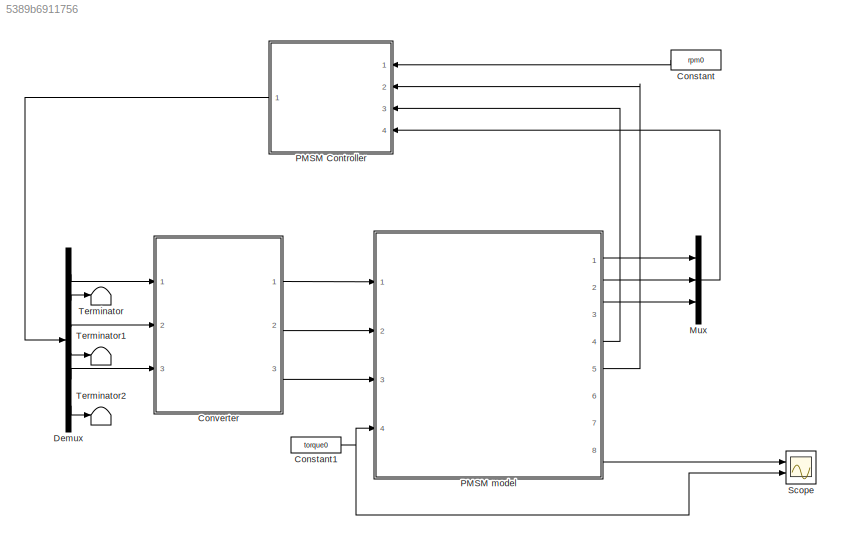
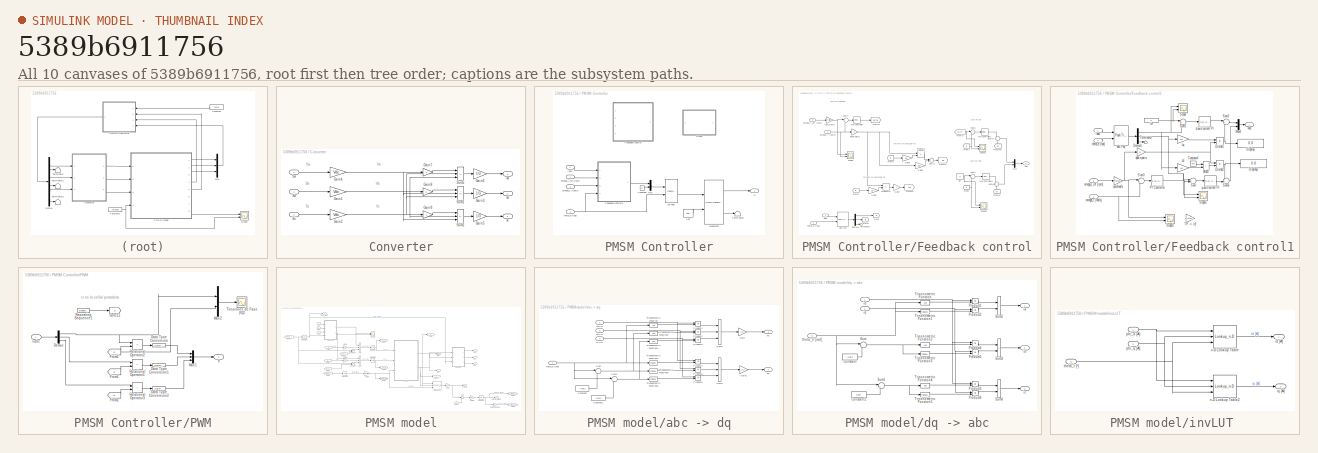
[diagram: thumbnail index - all 10 canvases of the model, root first then tree order]
MODEL slx_5389b6911756
KIND model
CONFIG AbsTol = 1e-3
CONFIG EnableMultiTasking = on
CONFIG FixedStep = Ts
CONFIG MaxStep = 1e-6
CONFIG MinStep = auto
CONFIG RelTol = 1e-4
CONFIG SampleTimeConstraint = Unconstrained
CONFIG SolverName = ode23t
CONFIG StartTime = 0.0
CONFIG StopTime = tsim
BLOCK [Constant] Constant
  Value = rpm0
BLOCK [Constant] Constant1
  Value = torque0
BLOCK [SubSystem] Converter
  Ports = [3, 3]
  RequestExecContextInheritance = off
BLOCK [Gain] Converter/Gain1
  Gain = Vdc
BLOCK [Gain] Converter/Gain2
  Gain = Vdc
BLOCK [Gain] Converter/Gain3
  Gain = 1/3
BLOCK [Gain] Converter/Gain4
  Gain = Vdc
BLOCK [Gain] Converter/Gain5
  Gain = 1/3
BLOCK [Gain] Converter/Gain6
  Gain = 1/3
BLOCK [Gain] Converter/Gain7
  Gain = 2
BLOCK [Gain] Converter/Gain8
  Gain = 2
BLOCK [Gain] Converter/Gain9
  Gain = 2
BLOCK [Inport] Converter/Sa
BLOCK [Inport] Converter/Sb
  Port = 2
BLOCK [Inport] Converter/Sc
  Port = 3
BLOCK [Sum] Converter/Sum1
  IconShape = rectangular
  Inputs = |+--
  Ports = [3, 1]
BLOCK [Sum] Converter/Sum2
  IconShape = rectangular
  Inputs = |+--
  Ports = [3, 1]
BLOCK [Sum] Converter/Sum5
  IconShape = rectangular
  Inputs = |+--
  Ports = [3, 1]
BLOCK [Outport] Converter/va
BLOCK [Outport] Converter/vb
  Port = 2
BLOCK [Outport] Converter/vc
  Port = 3
BLOCK [Demux] Demux
  Outputs = 6
  Ports = [1, 6]
BLOCK [Mux] Mux
  DisplayOption = bar
  Inputs = 3
  Ports = [3, 1]
BLOCK [SubSystem] PMSM Controller
  NameLocation = top
  Ports = [4, 1]
  RequestExecContextInheritance = off
BLOCK [Constant] PMSM Controller/Constant
  SampleTime = -1
  Value = 0
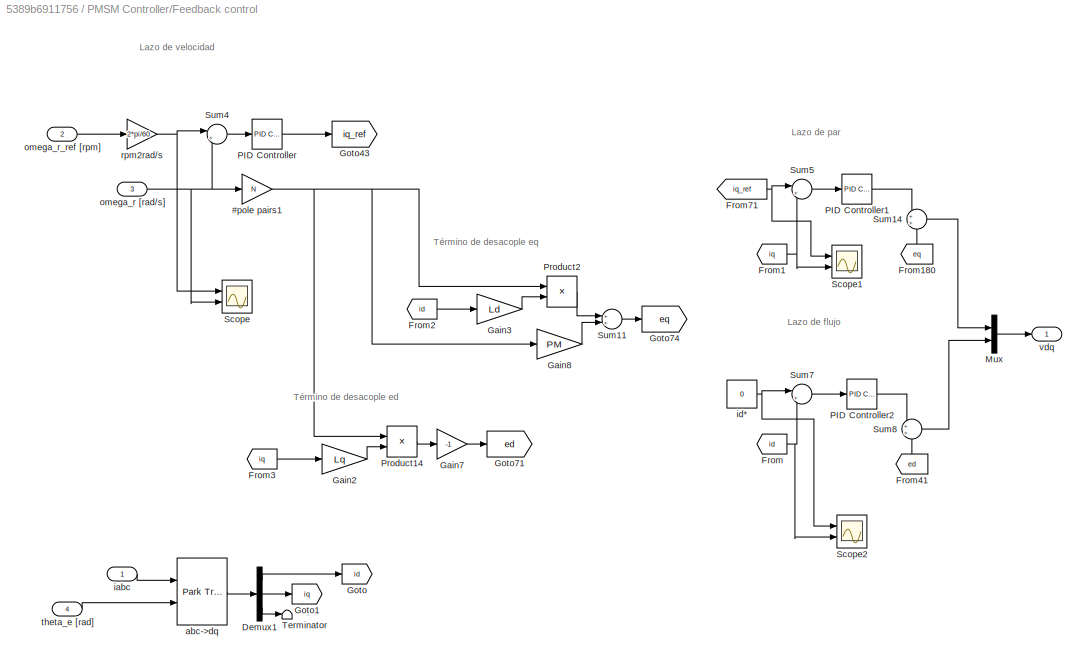
BLOCK [SubSystem] PMSM Controller/Feedback control
  Commented = on
  Ports = [4, 1]
  RequestExecContextInheritance = off
BLOCK [Gain] PMSM Controller/Feedback control/#pole pairs1
  Gain = N
BLOCK [Demux] PMSM Controller/Feedback control/Demux1
  Outputs = 3
  Ports = [1, 3]
BLOCK [From] PMSM Controller/Feedback control/From
  GotoTag = id
BLOCK [From] PMSM Controller/Feedback control/From1
  GotoTag = iq
BLOCK [From] PMSM Controller/Feedback control/From180
  CloseFcn = tagdialog Close
  GotoTag = eq
  NameLocation = left
BLOCK [From] PMSM Controller/Feedback control/From2
  GotoTag = id
BLOCK [From] PMSM Controller/Feedback control/From3
  GotoTag = iq
BLOCK [From] PMSM Controller/Feedback control/From41
  CloseFcn = tagdialog Close
  GotoTag = ed
  NameLocation = left
BLOCK [From] PMSM Controller/Feedback control/From71
  CloseFcn = tagdialog Close
  GotoTag = iq_ref
BLOCK [Gain] PMSM Controller/Feedback control/Gain2
  Gain = Lq
  NameLocation = top
BLOCK [Gain] PMSM Controller/Feedback control/Gain3
  Gain = Ld
  NameLocation = top
BLOCK [Gain] PMSM Controller/Feedback control/Gain7
  Gain = -1
  NameLocation = top
BLOCK [Gain] PMSM Controller/Feedback control/Gain8
  Gain = PM
  NameLocation = top
BLOCK [Goto] PMSM Controller/Feedback control/Goto
  GotoTag = id
BLOCK [Goto] PMSM Controller/Feedback control/Goto1
  GotoTag = iq
BLOCK [Goto] PMSM Controller/Feedback control/Goto43
  GotoTag = iq_ref
BLOCK [Goto] PMSM Controller/Feedback control/Goto71
  GotoTag = ed
BLOCK [Goto] PMSM Controller/Feedback control/Goto74
  GotoTag = eq
BLOCK [Mux] PMSM Controller/Feedback control/Mux
  DisplayOption = bar
  Inputs = 2
  Ports = [2, 1]
BLOCK [Reference] PMSM Controller/Feedback control/PID Controller  REF=simulink_need_slupdate/PID Controller
  Ports = [1, 1]
  SourceBlock = simulink_need_slupdate/PID Controller
  SourceProductBaseCode = SL
  SourceType = PID Controller
BLOCK [Reference] PMSM Controller/Feedback control/PID Controller1  REF=simulink_need_slupdate/PID Controller
  Ports = [1, 1]
  SourceBlock = simulink_need_slupdate/PID Controller
  SourceProductBaseCode = SL
  SourceType = PID Controller
BLOCK [Reference] PMSM Controller/Feedback control/PID Controller2  REF=simulink_need_slupdate/PID Controller
  Ports = [1, 1]
  SourceBlock = simulink_need_slupdate/PID Controller
  SourceProductBaseCode = SL
  SourceType = PID Controller
BLOCK [Product] PMSM Controller/Feedback control/Product14
  Ports = [2, 1]
  RndMeth = Zero
BLOCK [Product] PMSM Controller/Feedback control/Product2
  Ports = [2, 1]
  RndMeth = Zero
BLOCK [Scope] PMSM Controller/Feedback control/Scope
  Floating = off
  NumInputPorts = 2
  Ports = [2]
  ScopeSpecificationString = Simulink.scopes.TimeScopeBlockCfg('CurrentConfiguration', extmgr.ConfigurationSet(extmgr.Configuration('Core','General UI',true),extmgr.Configuration('Core','Source UI',true),extmgr.Configuration('Sources','WiredSimulink',true,'DataLoggingVariableName','ScopeData1'),extmgr.Configuration('Visuals','Time Domain',true,'SerializedDisplays',{struct('MinYLimReal','-38373.40397','MaxYLimReal','5101.46959...<+1500ch>
BLOCK [Scope] PMSM Controller/Feedback control/Scope1
  Floating = off
  NumInputPorts = 2
  Ports = [2]
  ScopeSpecificationString = Simulink.scopes.TimeScopeBlockCfg('CurrentConfiguration', extmgr.ConfigurationSet(extmgr.Configuration('Core','General UI',true),extmgr.Configuration('Core','Source UI',true),extmgr.Configuration('Sources','WiredSimulink',true,'DataLoggingVariableName','ScopeData2'),extmgr.Configuration('Visuals','Time Domain',true,'SerializedDisplays',{struct('MinYLimReal','-29332264.26569','MaxYLimReal','2639873...<+1529ch>
BLOCK [Scope] PMSM Controller/Feedback control/Scope2
  Floating = off
  NumInputPorts = 2
  Ports = [2]
  ScopeSpecificationString = Simulink.scopes.TimeScopeBlockCfg('CurrentConfiguration', extmgr.ConfigurationSet(extmgr.Configuration('Core','General UI',true),extmgr.Configuration('Core','Source UI',true),extmgr.Configuration('Sources','WiredSimulink',true,'DataLoggingVariableName','ScopeData1'),extmgr.Configuration('Visuals','Time Domain',true,'SerializedDisplays',{struct('MinYLimReal','-275.92352','MaxYLimReal','868.41621','...<+1486ch>
BLOCK [Sum] PMSM Controller/Feedback control/Sum11
  Ports = [2, 1]
BLOCK [Sum] PMSM Controller/Feedback control/Sum14
  Ports = [2, 1]
BLOCK [Sum] PMSM Controller/Feedback control/Sum4
  Inputs = |+-
  Ports = [2, 1]
BLOCK [Sum] PMSM Controller/Feedback control/Sum5
  Inputs = |+-
  Ports = [2, 1]
BLOCK [Sum] PMSM Controller/Feedback control/Sum7
  Inputs = |+-
  Ports = [2, 1]
BLOCK [Sum] PMSM Controller/Feedback control/Sum8
  Ports = [2, 1]
BLOCK [Terminator] PMSM Controller/Feedback control/Terminator
BLOCK [Reference] PMSM Controller/Feedback control/abc->dq  REF=eeTransforms/Park Transform
  Ports = [2, 1]
  SourceBlock = eeTransforms/Park Transform
  SourceProductBaseCode = PS
  SourceType = Park Transform
BLOCK [Inport] PMSM Controller/Feedback control/iabc
BLOCK [Constant] PMSM Controller/Feedback control/id*
  SampleTime = Tsc
  Value = 0
BLOCK [Inport] PMSM Controller/Feedback control/omega_r [rad//s]
  Port = 3
BLOCK [Inport] PMSM Controller/Feedback control/omega_r_ref [rpm]
  Port = 2
BLOCK [Gain] PMSM Controller/Feedback control/rpm2rad//s
  Gain = 2*pi/60
BLOCK [Inport] PMSM Controller/Feedback control/theta_e [rad]
  Port = 4
BLOCK [Outport] PMSM Controller/Feedback control/vdq
BLOCK [SubSystem] PMSM Controller/Feedback control1
  Ports = [4, 1]
  RequestExecContextInheritance = off
BLOCK [Gain] PMSM Controller/Feedback control1/#pole pairs
  Gain = N
BLOCK [Sum] PMSM Controller/Feedback control1/Add1
  IconShape = rectangular
  Ports = [2, 1]
BLOCK [Constant] PMSM Controller/Feedback control1/Constant4
  SampleTime = -1
  Value = PM
BLOCK [Demux] PMSM Controller/Feedback control1/Demux1
  Outputs = 3
  Ports = [1, 3]
BLOCK [Display] PMSM Controller/Feedback control1/Display
  Decimation = 1
  Ports = [1]
BLOCK [Display] PMSM Controller/Feedback control1/Display1
  Decimation = 1
  Ports = [1]
BLOCK [Product] PMSM Controller/Feedback control1/Divide1
  Inputs = **
  Ports = [2, 1]
BLOCK [Product] PMSM Controller/Feedback control1/Divide2
  Inputs = **
  Ports = [2, 1]
BLOCK [Gain] PMSM Controller/Feedback control1/Ld
  Gain = Ld
BLOCK [Gain] PMSM Controller/Feedback control1/Lq
  Gain = Lq
BLOCK [Mux] PMSM Controller/Feedback control1/Mux4
  DisplayOption = bar
  Inputs = 2
  Ports = [2, 1]
BLOCK [Reference] PMSM Controller/Feedback control1/PI Controller  REF=slpidlib/PID Controller
  Ports = [1, 1]
  SourceBlock = slpidlib/PID Controller
  SourceProductBaseCode = SL
  SourceType = PID 1dof
BLOCK [Scope] PMSM Controller/Feedback control1/Scope
  Floating = off
  NumInputPorts = 2
  Ports = [2]
  ScopeSpecificationString = Simulink.scopes.TimeScopeBlockCfg('CurrentConfiguration', extmgr.ConfigurationSet(extmgr.Configuration('Core','General UI',true),extmgr.Configuration('Core','Source UI',true),extmgr.Configuration('Sources','WiredSimulink',true,'DataLoggingVariableName','ScopeData1'),extmgr.Configuration('Visuals','Time Domain',true,'SerializedDisplays',{struct('MinYLimReal','-95.66539','MaxYLimReal','80.69376','YL...<+1480ch>
BLOCK [Scope] PMSM Controller/Feedback control1/Scope1
  Floating = off
  NumInputPorts = 2
  Ports = [2]
  ScopeSpecificationString = Simulink.scopes.TimeScopeBlockCfg('CurrentConfiguration', extmgr.ConfigurationSet(extmgr.Configuration('Core','General UI',true),extmgr.Configuration('Core','Source UI',true),extmgr.Configuration('Sources','WiredSimulink',true,'DataLoggingVariableName','ScopeData2'),extmgr.Configuration('Visuals','Time Domain',true,'SerializedDisplays',{struct('MinYLimReal','-1107.37328','MaxYLimReal','143.15809',...<+1504ch>
BLOCK [Scope] PMSM Controller/Feedback control1/Scope2
  Floating = off
  NumInputPorts = 2
  Ports = [2]
  ScopeSpecificationString = Simulink.scopes.TimeScopeBlockCfg('CurrentConfiguration', extmgr.ConfigurationSet(extmgr.Configuration('Core','General UI',true),extmgr.Configuration('Core','Source UI',true),extmgr.Configuration('Sources','WiredSimulink',true,'DataLoggingVariableName','ScopeData1'),extmgr.Configuration('Visuals','Time Domain',true,'SerializedDisplays',{struct('MinYLimReal','-65.89867','MaxYLimReal','1116.68684','...<+1540ch>
BLOCK [Sum] PMSM Controller/Feedback control1/Sum
  Inputs = -+|
  Ports = [2, 1]
BLOCK [Sum] PMSM Controller/Feedback control1/Sum1
  Inputs = |+-
  Ports = [2, 1]
BLOCK [Sum] PMSM Controller/Feedback control1/Sum2
  Inputs = |+-
  Ports = [2, 1]
BLOCK [Sum] PMSM Controller/Feedback control1/Sum3
  Inputs = |+-
  Ports = [2, 1]
BLOCK [Sum] PMSM Controller/Feedback control1/Sum6
  Inputs = ++|
  Ports = [2, 1]
BLOCK [Gain] PMSM Controller/Feedback control1/Te* -> iq*
  Commented = on
  Gain = 2/(3*N*PM)
BLOCK [Terminator] PMSM Controller/Feedback control1/Terminator
BLOCK [Reference] PMSM Controller/Feedback control1/abc->dq  REF=eeTransforms/Park Transform
  Ports = [2, 1]
  SourceBlock = eeTransforms/Park Transform
  SourceProductBaseCode = PS
  SourceType = Park Transform
BLOCK [Reference] PMSM Controller/Feedback control1/d-axis current PI  REF=slpidlib/PID Controller
  Ports = [1, 1]
  SourceBlock = slpidlib/PID Controller
  SourceProductBaseCode = SL
  SourceType = PID 1dof
BLOCK [Inport] PMSM Controller/Feedback control1/iabc
BLOCK [Constant] PMSM Controller/Feedback control1/id*
  SampleTime = Tsc
  Value = 0
BLOCK [Inport] PMSM Controller/Feedback control1/omega_r [rad//s]
  Port = 3
BLOCK [Inport] PMSM Controller/Feedback control1/omega_r_ref [rpm]
  Port = 2
BLOCK [Reference] PMSM Controller/Feedback control1/q-axis current PI  REF=slpidlib/PID Controller
  Ports = [1, 1]
  SourceBlock = slpidlib/PID Controller
  SourceProductBaseCode = SL
  SourceType = PID 1dof
BLOCK [Gain] PMSM Controller/Feedback control1/rpm2rad//s
  Gain = 2*pi/60
BLOCK [Inport] PMSM Controller/Feedback control1/theta_e [rad]
  Port = 4
BLOCK [Outport] PMSM Controller/Feedback control1/vdq
  VectorParamsAs1DForOutWhenUnconnected = off
BLOCK [Outport] PMSM Controller/G
  VectorParamsAs1DForOutWhenUnconnected = off
BLOCK [Reference] PMSM Controller/Modulator  REF=eePwmGeneratorTwoLevel/PWM Generator
(Three-phase, Two-level)
  Ports = [2, 2]
  SourceBlock = eePwmGeneratorTwoLevel/PWM Generator\n(Three-phase, Two-level)
  SourceProductBaseCode = PS
  SourceType = PWM Generator (three-phase, two-level)
BLOCK [Mux] PMSM Controller/Mux
  DisplayOption = bar
  Inputs = 2
  Ports = [2, 1]
BLOCK [SubSystem] PMSM Controller/PWM
  Commented = on
  Ports = [1, 1]
  RequestExecContextInheritance = off
BLOCK [DataTypeConversion] PMSM Controller/PWM/Data Type Conversion
  OutDataTypeStr = double
  RndMeth = Floor
  SaturateOnIntegerOverflow = off
BLOCK [DataTypeConversion] PMSM Controller/PWM/Data Type Conversion1
  OutDataTypeStr = double
  RndMeth = Floor
  SaturateOnIntegerOverflow = off
BLOCK [DataTypeConversion] PMSM Controller/PWM/Data Type Conversion2
  OutDataTypeStr = double
  RndMeth = Floor
  SaturateOnIntegerOverflow = off
BLOCK [Demux] PMSM Controller/PWM/Demux
  Outputs = 3
  Ports = [1, 3]
BLOCK [From] PMSM Controller/PWM/From1
  CloseFcn = tagdialog Close
  GotoTag = cr
BLOCK [From] PMSM Controller/PWM/From2
  CloseFcn = tagdialog Close
  GotoTag = cr
BLOCK [From] PMSM Controller/PWM/From5
  CloseFcn = tagdialog Close
  GotoTag = cr
BLOCK [Goto] PMSM Controller/PWM/Goto12
  GotoTag = cr
BLOCK [Mux] PMSM Controller/PWM/Mux1
  DisplayOption = bar
  Inputs = 3
  Ports = [3, 1]
BLOCK [Mux] PMSM Controller/PWM/Mux2
  DisplayOption = bar
  Inputs = 2
  Ports = [2, 1]
BLOCK [RelationalOperator] PMSM Controller/PWM/Relational Operator1
  InputSameDT = off
  Operator = >
  OutDataTypeStr = boolean
  Ports = [2, 1]
BLOCK [RelationalOperator] PMSM Controller/PWM/Relational Operator2
  InputSameDT = off
  Operator = >
  OutDataTypeStr = boolean
  Ports = [2, 1]
BLOCK [RelationalOperator] PMSM Controller/PWM/Relational Operator3
  InputSameDT = off
  Operator = >
  OutDataTypeStr = boolean
  Ports = [2, 1]
BLOCK [Reference] PMSM Controller/PWM/Repeating Sequence1  REF=simulink/Sources/Repeating
Sequence
  Ports = [0, 1]
  SourceBlock = simulink/Sources/Repeating\nSequence
  SourceProductBaseCode = SL
  SourceType = Repeating table
BLOCK [Outport] PMSM Controller/PWM/S
BLOCK [Scope] PMSM Controller/PWM/Tensiones de Fase (V)2
  Floating = off
  NumInputPorts = 1
  Ports = [1]
  ScopeSpecificationString = Simulink.scopes.TimeScopeBlockCfg('CurrentConfiguration', extmgr.ConfigurationSet(extmgr.Configuration('Core','General UI',true),extmgr.Configuration('Core','Source UI',true),extmgr.Configuration('Sources','WiredSimulink',true,'DataLoggingVariableName','ScopeData7','DataLoggingSaveFormat','StructureWithTime','DataLoggingDecimation','1','DataLoggingDecimateData',true),extmgr.Configuration('Visuals'...<+1755ch>
BLOCK [Inport] PMSM Controller/PWM/vabc
BLOCK [Terminator] PMSM Controller/Terminator
BLOCK [Constant] PMSM Controller/Vdc
  SampleTime = Tsc
  Value = Vdc
BLOCK [Reference] PMSM Controller/dq->abc  REF=eeTransforms/Inverse
Park Transform
  Ports = [2, 1]
  SourceBlock = eeTransforms/Inverse\nPark Transform
  SourceProductBaseCode = PS
  SourceType = Inverse Park Transform
BLOCK [Inport] PMSM Controller/iabc
  Port = 4
BLOCK [Inport] PMSM Controller/omega_r [rad//s]
  Port = 2
BLOCK [Inport] PMSM Controller/omega_r_ref [rpm]
BLOCK [Inport] PMSM Controller/theta_e [rad]
  Port = 3
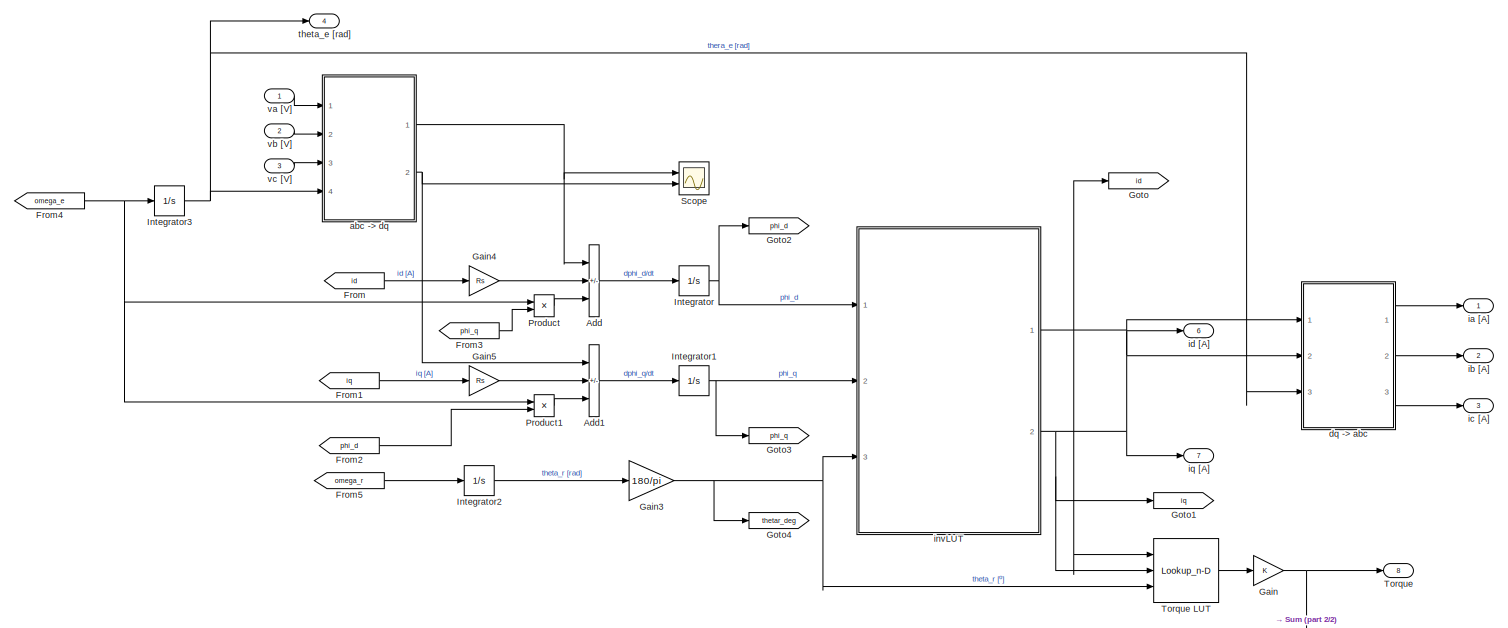
[diagram: PMSM model - part 1/2, most of the canvas]
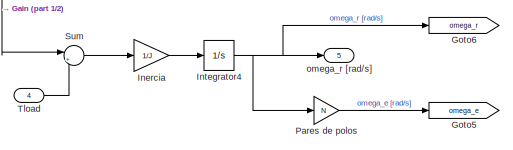
[diagram: PMSM model - part 2/2, bottom right region]
BLOCK [SubSystem] PMSM model
  Ports = [4, 8]
  RequestExecContextInheritance = off
BLOCK [Sum] PMSM model/Add
  IconShape = rectangular
  Inputs = +--
  Ports = [3, 1]
BLOCK [Sum] PMSM model/Add1
  IconShape = rectangular
  Inputs = +-+
  Ports = [3, 1]
BLOCK [From] PMSM model/From
  GotoTag = id
BLOCK [From] PMSM model/From1
  GotoTag = iq
BLOCK [From] PMSM model/From2
  GotoTag = phi_d
BLOCK [From] PMSM model/From3
  GotoTag = phi_q
BLOCK [From] PMSM model/From4
  GotoTag = omega_e
BLOCK [From] PMSM model/From5
  GotoTag = omega_r
BLOCK [Gain] PMSM model/Gain
BLOCK [Gain] PMSM model/Gain3
  Gain = 180/pi
BLOCK [Gain] PMSM model/Gain4
  Gain = Rs
BLOCK [Gain] PMSM model/Gain5
  Gain = Rs
BLOCK [Goto] PMSM model/Goto
  GotoTag = id
BLOCK [Goto] PMSM model/Goto1
  GotoTag = iq
BLOCK [Goto] PMSM model/Goto2
  GotoTag = phi_d
BLOCK [Goto] PMSM model/Goto3
  GotoTag = phi_q
BLOCK [Goto] PMSM model/Goto4
  GotoTag = thetar_deg
  TagVisibility = global
BLOCK [Goto] PMSM model/Goto5
  GotoTag = omega_e
BLOCK [Goto] PMSM model/Goto6
  GotoTag = omega_r
BLOCK [Gain] PMSM model/Inercia
  Gain = 1/J
BLOCK [Integrator] PMSM model/Integrator
  InitialCondition = -0.2
  Ports = [1, 1]
BLOCK [Integrator] PMSM model/Integrator1
  Ports = [1, 1]
BLOCK [Integrator] PMSM model/Integrator2
  Ports = [1, 1]
  WrapState = on
  WrappedStateLowerValue = 0
  WrappedStateUpperValue = 2*pi/3/N
BLOCK [Integrator] PMSM model/Integrator3
  Ports = [1, 1]
BLOCK [Integrator] PMSM model/Integrator4
  InitialCondition = 750
  Ports = [1, 1]
BLOCK [Gain] PMSM model/Pares de polos
  Gain = N
BLOCK [Product] PMSM model/Product
  Ports = [2, 1]
BLOCK [Product] PMSM model/Product1
  Ports = [2, 1]
BLOCK [Scope] PMSM model/Scope
  Floating = off
  NumInputPorts = 2
  Ports = [2]
  ScopeSpecificationString = Simulink.scopes.TimeScopeBlockCfg('CurrentConfiguration', extmgr.ConfigurationSet(extmgr.Configuration('Core','General UI',true),extmgr.Configuration('Core','Source UI',true),extmgr.Configuration('Sources','WiredSimulink',true,'DataLoggingVariableName','ScopeData4'),extmgr.Configuration('Visuals','Time Domain',true,'SerializedDisplays',{struct('MinYLimReal','337.63364','MaxYLimReal','436.71881','Y...<+2089ch>
BLOCK [Sum] PMSM model/Sum
  Inputs = |+-
  Ports = [2, 1]
BLOCK [Inport] PMSM model/Tload
  Port = 4
BLOCK [Outport] PMSM model/Torque
  Port = 8
BLOCK [Lookup_n-D] PMSM model/Torque LUT
  BreakpointsForDimension1 = idVec
  BreakpointsForDimension2 = iqVec
  BreakpointsForDimension3 = angleVec
  InputPortMap = u0,u1,u2
  InternalRulePriority = Speed
  LookupTableObject = iD
  NumberOfTableDimensions = 3
  Ports = [3, 1]
  RndMeth = Simplest
  Table = torque
BLOCK [SubSystem] PMSM model/abc -> dq
  Ports = [4, 2]
  RequestExecContextInheritance = off
BLOCK [Constant] PMSM model/abc -> dq/Constant
  Value = -2*pi/3
BLOCK [Constant] PMSM model/abc -> dq/Constant1
  Value = 2*pi/3
BLOCK [Gain] PMSM model/abc -> dq/Gain
  Gain = 2/3
BLOCK [Gain] PMSM model/abc -> dq/Gain1
  Gain = 2/3
BLOCK [Product] PMSM model/abc -> dq/Product1
  Ports = [2, 1]
  RndMeth = Zero
BLOCK [Product] PMSM model/abc -> dq/Product2
  Ports = [2, 1]
  RndMeth = Zero
BLOCK [Product] PMSM model/abc -> dq/Product3
  Ports = [2, 1]
  RndMeth = Zero
BLOCK [Product] PMSM model/abc -> dq/Product4
  Ports = [2, 1]
  RndMeth = Zero
BLOCK [Product] PMSM model/abc -> dq/Product5
  Ports = [2, 1]
  RndMeth = Zero
BLOCK [Product] PMSM model/abc -> dq/Product6
  Ports = [2, 1]
  RndMeth = Zero
BLOCK [Sum] PMSM model/abc -> dq/Sum
  Inputs = |++
  Ports = [2, 1]
BLOCK [Sum] PMSM model/abc -> dq/Sum1
  Inputs = |++
  Ports = [2, 1]
BLOCK [Sum] PMSM model/abc -> dq/Sum2
  IconShape = rectangular
  Inputs = +++
  Ports = [3, 1]
BLOCK [Sum] PMSM model/abc -> dq/Sum3
  IconShape = rectangular
  Inputs = +++
  Ports = [3, 1]
BLOCK [Trigonometry] PMSM model/abc -> dq/Trigonometric Function
  Operator = cos
  Ports = [1, 1]
BLOCK [Trigonometry] PMSM model/abc -> dq/Trigonometric Function1
  Ports = [1, 1]
BLOCK [Trigonometry] PMSM model/abc -> dq/Trigonometric Function2
  Operator = cos
  Ports = [1, 1]
BLOCK [Trigonometry] PMSM model/abc -> dq/Trigonometric Function3
  Ports = [1, 1]
BLOCK [Trigonometry] PMSM model/abc -> dq/Trigonometric Function4
  Operator = cos
  Ports = [1, 1]
BLOCK [Trigonometry] PMSM model/abc -> dq/Trigonometric Function5
  Ports = [1, 1]
BLOCK [Inport] PMSM model/abc -> dq/theta_e [rad]
  Port = 4
BLOCK [Inport] PMSM model/abc -> dq/va [V]
BLOCK [Inport] PMSM model/abc -> dq/vb [V]
  Port = 2
BLOCK [Inport] PMSM model/abc -> dq/vc [V]
  Port = 3
BLOCK [Outport] PMSM model/abc -> dq/vd
BLOCK [Outport] PMSM model/abc -> dq/vq
  Port = 2
BLOCK [SubSystem] PMSM model/dq -> abc
  Ports = [3, 3]
  RequestExecContextInheritance = off
BLOCK [Constant] PMSM model/dq -> abc/Constant
  Value = -2*pi/3
BLOCK [Constant] PMSM model/dq -> abc/Constant1
  Value = 2*pi/3
BLOCK [Product] PMSM model/dq -> abc/Product1
  Ports = [2, 1]
  RndMeth = Zero
BLOCK [Product] PMSM model/dq -> abc/Product2
  Ports = [2, 1]
  RndMeth = Zero
BLOCK [Product] PMSM model/dq -> abc/Product3
  Ports = [2, 1]
  RndMeth = Zero
BLOCK [Product] PMSM model/dq -> abc/Product4
  Ports = [2, 1]
  RndMeth = Zero
BLOCK [Product] PMSM model/dq -> abc/Product5
  Ports = [2, 1]
  RndMeth = Zero
BLOCK [Product] PMSM model/dq -> abc/Product6
  Ports = [2, 1]
  RndMeth = Zero
BLOCK [Sum] PMSM model/dq -> abc/Sum
  Inputs = |++
  Ports = [2, 1]
BLOCK [Sum] PMSM model/dq -> abc/Sum1
  Inputs = |++
  Ports = [2, 1]
BLOCK [Sum] PMSM model/dq -> abc/Sum2
  IconShape = rectangular
  Ports = [2, 1]
BLOCK [Sum] PMSM model/dq -> abc/Sum3
  IconShape = rectangular
  Ports = [2, 1]
BLOCK [Sum] PMSM model/dq -> abc/Sum4
  IconShape = rectangular
  Ports = [2, 1]
BLOCK [Trigonometry] PMSM model/dq -> abc/Trigonometric Function
  Operator = cos
  Ports = [1, 1]
BLOCK [Trigonometry] PMSM model/dq -> abc/Trigonometric Function1
  Ports = [1, 1]
BLOCK [Trigonometry] PMSM model/dq -> abc/Trigonometric Function2
  Operator = cos
  Ports = [1, 1]
BLOCK [Trigonometry] PMSM model/dq -> abc/Trigonometric Function3
  Ports = [1, 1]
BLOCK [Trigonometry] PMSM model/dq -> abc/Trigonometric Function4
  Operator = cos
  Ports = [1, 1]
BLOCK [Trigonometry] PMSM model/dq -> abc/Trigonometric Function5
  Ports = [1, 1]
BLOCK [Outport] PMSM model/dq -> abc/ia
BLOCK [Outport] PMSM model/dq -> abc/ib
  Port = 2
BLOCK [Outport] PMSM model/dq -> abc/ic
  Port = 3
BLOCK [Inport] PMSM model/dq -> abc/id
BLOCK [Inport] PMSM model/dq -> abc/iq
  Port = 2
BLOCK [Inport] PMSM model/dq -> abc/theta_e [rad]
  Port = 3
BLOCK [Outport] PMSM model/ia [A]
BLOCK [Outport] PMSM model/ib [A]
  Port = 2
BLOCK [Outport] PMSM model/ic [A]
  Port = 3
BLOCK [Outport] PMSM model/id [A]
  Port = 6
BLOCK [SubSystem] PMSM model/invLUT 
  Ports = [3, 2]
  RequestExecContextInheritance = off
BLOCK [Outport] PMSM model/invLUT /id [A]
BLOCK [Outport] PMSM model/invLUT /iq [A]
  Port = 2
BLOCK [Lookup_n-D] PMSM model/invLUT /n-D Lookup Table
  BreakpointsForDimension1 = data.phi_d
  BreakpointsForDimension2 = data.phi_q
  BreakpointsForDimension3 = data.theta
  InputPortMap = u0,u1,u2
  InternalRulePriority = Speed
  LookupTableObject = iD
  NumberOfTableDimensions = 3
  Ports = [3, 1]
  RndMeth = Simplest
  Table = data.i_d
BLOCK [Lookup_n-D] PMSM model/invLUT /n-D Lookup Table2
  BreakpointsForDimension1 = data.phi_d
  BreakpointsForDimension2 = data.phi_q
  BreakpointsForDimension3 = data.theta
  InputPortMap = u0,u1,u2
  InternalRulePriority = Speed
  LookupTableObject = iD
  NumberOfTableDimensions = 3
  Ports = [3, 1]
  RndMeth = Simplest
  Table = data.i_q
BLOCK [Inport] PMSM model/invLUT /phi_d [A]
BLOCK [Inport] PMSM model/invLUT /phi_q [A]
  Port = 2
BLOCK [Inport] PMSM model/invLUT /theta_r [º]
  Port = 3
BLOCK [Outport] PMSM model/iq [A]
  Port = 7
BLOCK [Outport] PMSM model/omega_r [rad//s]
  Port = 5
BLOCK [Outport] PMSM model/theta_e [rad]
  Port = 4
BLOCK [Inport] PMSM model/va [V]
BLOCK [Inport] PMSM model/vb [V]
  Port = 2
BLOCK [Inport] PMSM model/vc [V]
  Port = 3
BLOCK [Scope] Scope
  Floating = off
  NumInputPorts = 2
  Ports = [2]
  ScopeSpecificationString = Simulink.scopes.TimeScopeBlockCfg('CurrentConfiguration', extmgr.ConfigurationSet(extmgr.Configuration('Core','General UI',true),extmgr.Configuration('Core','Source UI',true),extmgr.Configuration('Sources','WiredSimulink',true,'DataLoggingVariableName','ScopeData1'),extmgr.Configuration('Visuals','Time Domain',true,'SerializedDisplays',{struct('MinYLimReal','-231.1702','MaxYLimReal','260.81556','Y...<+1476ch>
BLOCK [Terminator] Terminator
BLOCK [Terminator] Terminator1
BLOCK [Terminator] Terminator2
ANNOTATION Converter: Sa
ANNOTATION Converter: Sb
ANNOTATION Converter: Sc
ANNOTATION Converter: Va
ANNOTATION Converter: Vb
ANNOTATION Converter: Vc
ANNOTATION PMSM Controller/Feedback control: Lazo de flujo
ANNOTATION PMSM Controller/Feedback control: Lazo de par
ANNOTATION PMSM Controller/Feedback control: Lazo de velocidad
ANNOTATION PMSM Controller/Feedback control: Término de desacople ed
ANNOTATION PMSM Controller/Feedback control: Término de desacople eq
ANNOTATION PMSM Controller/PWM: cr es la señal portadora
NET Constant1:1 -> PMSM model:4, Scope:2
LINE Constant:1 -> PMSM Controller:1
NET Converter/Gain1:1 -> Converter/Gain8:1, Converter/Sum2:2, Converter/Sum5:3
NET Converter/Gain2:1 -> Converter/Gain9:1, Converter/Sum1:3, Converter/Sum5:2
LINE Converter/Gain3:1 -> Converter/vb:1
NET Converter/Gain4:1 -> Converter/Gain7:1, Converter/Sum1:2, Converter/Sum2:3
LINE Converter/Gain5:1 -> Converter/vc:1
LINE Converter/Gain6:1 -> Converter/va:1
LINE Converter/Gain7:1 -> Converter/Sum5:1
LINE Converter/Gain8:1 -> Converter/Sum1:1
LINE Converter/Gain9:1 -> Converter/Sum2:1
LINE Converter/Sa:1 -> Converter/Gain4:1
LINE Converter/Sb:1 -> Converter/Gain1:1
LINE Converter/Sc:1 -> Converter/Gain2:1
LINE Converter/Sum1:1 -> Converter/Gain3:1
LINE Converter/Sum2:1 -> Converter/Gain5:1
LINE Converter/Sum5:1 -> Converter/Gain6:1
LINE Converter:1 -> PMSM model:1
LINE Converter:2 -> PMSM model:2
LINE Converter:3 -> PMSM model:3
LINE Demux:1 -> Converter:1
LINE Demux:2 -> Terminator:1
LINE Demux:3 -> Converter:2
LINE Demux:4 -> Terminator1:1
LINE Demux:5 -> Converter:3
LINE Demux:6 -> Terminator2:1
LINE Mux:1 -> PMSM Controller:4
LINE PMSM Controller/Constant:1 -> PMSM Controller/Mux:2
NET PMSM Controller/Feedback control/#pole pairs1:1 -> PMSM Controller/Feedback control/Gain8:1, PMSM Controller/Feedback control/Product14:1, PMSM Controller/Feedback control/Product2:1
LINE PMSM Controller/Feedback control/Demux1:1 -> PMSM Controller/Feedback control/Goto:1
LINE PMSM Controller/Feedback control/Demux1:2 -> PMSM Controller/Feedback control/Goto1:1
LINE PMSM Controller/Feedback control/Demux1:3 -> PMSM Controller/Feedback control/Terminator:1
LINE PMSM Controller/Feedback control/From180:1 -> PMSM Controller/Feedback control/Sum14:2
NET PMSM Controller/Feedback control/From1:1 -> PMSM Controller/Feedback control/Scope1:2, PMSM Controller/Feedback control/Sum5:2
LINE PMSM Controller/Feedback control/From2:1 -> PMSM Controller/Feedback control/Gain3:1
LINE PMSM Controller/Feedback control/From3:1 -> PMSM Controller/Feedback control/Gain2:1
LINE PMSM Controller/Feedback control/From41:1 -> PMSM Controller/Feedback control/Sum8:2
NET PMSM Controller/Feedback control/From71:1 -> PMSM Controller/Feedback control/Scope1:1, PMSM Controller/Feedback control/Sum5:1
NET PMSM Controller/Feedback control/From:1 -> PMSM Controller/Feedback control/Scope2:2, PMSM Controller/Feedback control/Sum7:2
LINE PMSM Controller/Feedback control/Gain2:1 -> PMSM Controller/Feedback control/Product14:2
LINE PMSM Controller/Feedback control/Gain3:1 -> PMSM Controller/Feedback control/Product2:2
LINE PMSM Controller/Feedback control/Gain7:1 -> PMSM Controller/Feedback control/Goto71:1
LINE PMSM Controller/Feedback control/Gain8:1 -> PMSM Controller/Feedback control/Sum11:2
LINE PMSM Controller/Feedback control/Mux:1 -> PMSM Controller/Feedback control/vdq:1
LINE PMSM Controller/Feedback control/PID Controller1:1 -> PMSM Controller/Feedback control/Sum14:1
LINE PMSM Controller/Feedback control/PID Controller2:1 -> PMSM Controller/Feedback control/Sum8:1
LINE PMSM Controller/Feedback control/PID Controller:1 -> PMSM Controller/Feedback control/Goto43:1
LINE PMSM Controller/Feedback control/Product14:1 -> PMSM Controller/Feedback control/Gain7:1
LINE PMSM Controller/Feedback control/Product2:1 -> PMSM Controller/Feedback control/Sum11:1
LINE PMSM Controller/Feedback control/Sum11:1 -> PMSM Controller/Feedback control/Goto74:1
LINE PMSM Controller/Feedback control/Sum14:1 -> PMSM Controller/Feedback control/Mux:1
LINE PMSM Controller/Feedback control/Sum4:1 -> PMSM Controller/Feedback control/PID Controller:1
LINE PMSM Controller/Feedback control/Sum5:1 -> PMSM Controller/Feedback control/PID Controller1:1
LINE PMSM Controller/Feedback control/Sum7:1 -> PMSM Controller/Feedback control/PID Controller2:1
LINE PMSM Controller/Feedback control/Sum8:1 -> PMSM Controller/Feedback control/Mux:2
LINE PMSM Controller/Feedback control/abc->dq:1 -> PMSM Controller/Feedback control/Demux1:1
LINE PMSM Controller/Feedback control/iabc:1 -> PMSM Controller/Feedback control/abc->dq:1
NET PMSM Controller/Feedback control/id*:1 -> PMSM Controller/Feedback control/Scope2:1, PMSM Controller/Feedback control/Sum7:1
NET PMSM Controller/Feedback control/omega_r [rad//s]:1 -> PMSM Controller/Feedback control/#pole pairs1:1, PMSM Controller/Feedback control/Scope:2, PMSM Controller/Feedback control/Sum4:2
LINE PMSM Controller/Feedback control/omega_r_ref [rpm]:1 -> PMSM Controller/Feedback control/rpm2rad//s:1
NET PMSM Controller/Feedback control/rpm2rad//s:1 -> PMSM Controller/Feedback control/Scope:1, PMSM Controller/Feedback control/Sum4:1
LINE PMSM Controller/Feedback control/theta_e [rad]:1 -> PMSM Controller/Feedback control/abc->dq:2
NET PMSM Controller/Feedback control1/#pole pairs:1 -> PMSM Controller/Feedback control1/Divide1:2, PMSM Controller/Feedback control1/Divide2:1
LINE PMSM Controller/Feedback control1/Add1:1 -> PMSM Controller/Feedback control1/Divide2:2
LINE PMSM Controller/Feedback control1/Constant4:1 -> PMSM Controller/Feedback control1/Add1:1
NET PMSM Controller/Feedback control1/Demux1:1 -> PMSM Controller/Feedback control1/Ld:1, PMSM Controller/Feedback control1/Scope:1, PMSM Controller/Feedback control1/Sum1:2
NET PMSM Controller/Feedback control1/Demux1:2 -> PMSM Controller/Feedback control1/Lq:1, PMSM Controller/Feedback control1/Scope1:1, PMSM Controller/Feedback control1/Sum:1
LINE PMSM Controller/Feedback control1/Demux1:3 -> PMSM Controller/Feedback control1/Terminator:1
NET PMSM Controller/Feedback control1/Divide1:1 -> PMSM Controller/Feedback control1/Display:1, PMSM Controller/Feedback control1/Sum2:2
NET PMSM Controller/Feedback control1/Divide2:1 -> PMSM Controller/Feedback control1/Display1:1, PMSM Controller/Feedback control1/Sum6:1
LINE PMSM Controller/Feedback control1/Ld:1 -> PMSM Controller/Feedback control1/Add1:2
LINE PMSM Controller/Feedback control1/Lq:1 -> PMSM Controller/Feedback control1/Divide1:1
LINE PMSM Controller/Feedback control1/Mux4:1 -> PMSM Controller/Feedback control1/vdq:1
NET PMSM Controller/Feedback control1/PI Controller:1 -> PMSM Controller/Feedback control1/Scope1:2, PMSM Controller/Feedback control1/Sum:2
LINE PMSM Controller/Feedback control1/Sum1:1 -> PMSM Controller/Feedback control1/d-axis current PI:1
LINE PMSM Controller/Feedback control1/Sum2:1 -> PMSM Controller/Feedback control1/Mux4:1
LINE PMSM Controller/Feedback control1/Sum3:1 -> PMSM Controller/Feedback control1/PI Controller:1
LINE PMSM Controller/Feedback control1/Sum6:1 -> PMSM Controller/Feedback control1/Mux4:2
LINE PMSM Controller/Feedback control1/Sum:1 -> PMSM Controller/Feedback control1/q-axis current PI:1
LINE PMSM Controller/Feedback control1/abc->dq:1 -> PMSM Controller/Feedback control1/Demux1:1
LINE PMSM Controller/Feedback control1/d-axis current PI:1 -> PMSM Controller/Feedback control1/Sum2:1
LINE PMSM Controller/Feedback control1/iabc:1 -> PMSM Controller/Feedback control1/abc->dq:1
NET PMSM Controller/Feedback control1/id*:1 -> PMSM Controller/Feedback control1/Scope:2, PMSM Controller/Feedback control1/Sum1:1
NET PMSM Controller/Feedback control1/omega_r [rad//s]:1 -> PMSM Controller/Feedback control1/Scope2:2, PMSM Controller/Feedback control1/Sum3:2
LINE PMSM Controller/Feedback control1/omega_r_ref [rpm]:1 -> PMSM Controller/Feedback control1/rpm2rad//s:1
LINE PMSM Controller/Feedback control1/q-axis current PI:1 -> PMSM Controller/Feedback control1/Sum6:2
NET PMSM Controller/Feedback control1/rpm2rad//s:1 -> PMSM Controller/Feedback control1/#pole pairs:1, PMSM Controller/Feedback control1/Scope2:1, PMSM Controller/Feedback control1/Sum3:1
LINE PMSM Controller/Feedback control1/theta_e [rad]:1 -> PMSM Controller/Feedback control1/abc->dq:2
LINE PMSM Controller/Feedback control1:1 -> PMSM Controller/Mux:1
LINE PMSM Controller/Modulator:1 -> PMSM Controller/G:1
LINE PMSM Controller/Modulator:2 -> PMSM Controller/Terminator:1
LINE PMSM Controller/Mux:1 -> PMSM Controller/dq->abc:1
LINE PMSM Controller/PWM/Data Type Conversion1:1 -> PMSM Controller/PWM/Mux1:2
LINE PMSM Controller/PWM/Data Type Conversion2:1 -> PMSM Controller/PWM/Mux1:3
LINE PMSM Controller/PWM/Data Type Conversion:1 -> PMSM Controller/PWM/Mux1:1
NET PMSM Controller/PWM/Demux:1 -> PMSM Controller/PWM/Mux2:1, PMSM Controller/PWM/Relational Operator2:1
LINE PMSM Controller/PWM/Demux:2 -> PMSM Controller/PWM/Relational Operator1:1
LINE PMSM Controller/PWM/Demux:3 -> PMSM Controller/PWM/Relational Operator3:1
LINE PMSM Controller/PWM/From1:1 -> PMSM Controller/PWM/Relational Operator1:2
LINE PMSM Controller/PWM/From2:1 -> PMSM Controller/PWM/Relational Operator3:2
NET PMSM Controller/PWM/From5:1 -> PMSM Controller/PWM/Mux2:2, PMSM Controller/PWM/Relational Operator2:2
LINE PMSM Controller/PWM/Mux1:1 -> PMSM Controller/PWM/S:1
LINE PMSM Controller/PWM/Mux2:1 -> PMSM Controller/PWM/Tensiones de Fase (V)2:1
LINE PMSM Controller/PWM/Relational Operator1:1 -> PMSM Controller/PWM/Data Type Conversion1:1
LINE PMSM Controller/PWM/Relational Operator2:1 -> PMSM Controller/PWM/Data Type Conversion:1
LINE PMSM Controller/PWM/Relational Operator3:1 -> PMSM Controller/PWM/Data Type Conversion2:1
LINE PMSM Controller/PWM/Repeating Sequence1:1 -> PMSM Controller/PWM/Goto12:1
LINE PMSM Controller/PWM/vabc:1 -> PMSM Controller/PWM/Demux:1
LINE PMSM Controller/Vdc:1 -> PMSM Controller/Modulator:2
LINE PMSM Controller/dq->abc:1 -> PMSM Controller/Modulator:1
LINE PMSM Controller/iabc:1 -> PMSM Controller/Feedback control1:1
LINE PMSM Controller/omega_r [rad//s]:1 -> PMSM Controller/Feedback control1:3
LINE PMSM Controller/omega_r_ref [rpm]:1 -> PMSM Controller/Feedback control1:2
NET PMSM Controller/theta_e [rad]:1 -> PMSM Controller/Feedback control1:4, PMSM Controller/dq->abc:2
LINE PMSM Controller:1 -> Demux:1
LINE PMSM model/Add1:1 -> PMSM model/Integrator1:1
LINE PMSM model/Add:1 -> PMSM model/Integrator:1
LINE PMSM model/From1:1 -> PMSM model/Gain5:1
LINE PMSM model/From2:1 -> PMSM model/Product1:2
LINE PMSM model/From3:1 -> PMSM model/Product:2
NET PMSM model/From4:1 -> PMSM model/Integrator3:1, PMSM model/Product1:1, PMSM model/Product:1
LINE PMSM model/From5:1 -> PMSM model/Integrator2:1
LINE PMSM model/From:1 -> PMSM model/Gain4:1
NET PMSM model/Gain3:1 -> PMSM model/Goto4:1, PMSM model/Torque LUT:3, PMSM model/invLUT :3
LINE PMSM model/Gain4:1 -> PMSM model/Add:2
LINE PMSM model/Gain5:1 -> PMSM model/Add1:2
NET PMSM model/Gain:1 -> PMSM model/Sum:1, PMSM model/Torque:1
LINE PMSM model/Inercia:1 -> PMSM model/Integrator4:1
NET PMSM model/Integrator1:1 -> PMSM model/Goto3:1, PMSM model/invLUT :2
LINE PMSM model/Integrator2:1 -> PMSM model/Gain3:1
NET PMSM model/Integrator3:1 -> PMSM model/abc -> dq:4, PMSM model/dq -> abc:3, PMSM model/theta_e [rad]:1
NET PMSM model/Integrator4:1 -> PMSM model/Goto6:1, PMSM model/Pares de polos:1, PMSM model/omega_r [rad//s]:1
NET PMSM model/Integrator:1 -> PMSM model/Goto2:1, PMSM model/invLUT :1
LINE PMSM model/Pares de polos:1 -> PMSM model/Goto5:1
LINE PMSM model/Product1:1 -> PMSM model/Add1:3
LINE PMSM model/Product:1 -> PMSM model/Add:3
LINE PMSM model/Sum:1 -> PMSM model/Inercia:1
LINE PMSM model/Tload:1 -> PMSM model/Sum:2
LINE PMSM model/Torque LUT:1 -> PMSM model/Gain:1
LINE PMSM model/abc -> dq/Constant1:1 -> PMSM model/abc -> dq/Sum1:2
LINE PMSM model/abc -> dq/Constant:1 -> PMSM model/abc -> dq/Sum:2
LINE PMSM model/abc -> dq/Gain1:1 -> PMSM model/abc -> dq/vq:1
LINE PMSM model/abc -> dq/Gain:1 -> PMSM model/abc -> dq/vd:1
LINE PMSM model/abc -> dq/Product1:1 -> PMSM model/abc -> dq/Sum2:1
LINE PMSM model/abc -> dq/Product2:1 -> PMSM model/abc -> dq/Sum2:2
LINE PMSM model/abc -> dq/Product3:1 -> PMSM model/abc -> dq/Sum2:3
LINE PMSM model/abc -> dq/Product4:1 -> PMSM model/abc -> dq/Sum3:1
LINE PMSM model/abc -> dq/Product5:1 -> PMSM model/abc -> dq/Sum3:2
LINE PMSM model/abc -> dq/Product6:1 -> PMSM model/abc -> dq/Sum3:3
NET PMSM model/abc -> dq/Sum1:1 -> PMSM model/abc -> dq/Trigonometric Function4:1, PMSM model/abc -> dq/Trigonometric Function5:1
LINE PMSM model/abc -> dq/Sum2:1 -> PMSM model/abc -> dq/Gain:1
LINE PMSM model/abc -> dq/Sum3:1 -> PMSM model/abc -> dq/Gain1:1
NET PMSM model/abc -> dq/Sum:1 -> PMSM model/abc -> dq/Trigonometric Function2:1, PMSM model/abc -> dq/Trigonometric Function3:1
LINE PMSM model/abc -> dq/Trigonometric Function1:1 -> PMSM model/abc -> dq/Product4:2
LINE PMSM model/abc -> dq/Trigonometric Function2:1 -> PMSM model/abc -> dq/Product2:2
LINE PMSM model/abc -> dq/Trigonometric Function3:1 -> PMSM model/abc -> dq/Product5:2
LINE PMSM model/abc -> dq/Trigonometric Function4:1 -> PMSM model/abc -> dq/Product3:2
LINE PMSM model/abc -> dq/Trigonometric Function5:1 -> PMSM model/abc -> dq/Product6:2
LINE PMSM model/abc -> dq/Trigonometric Function:1 -> PMSM model/abc -> dq/Product1:2
NET PMSM model/abc -> dq/theta_e [rad]:1 -> PMSM model/abc -> dq/Sum1:1, PMSM model/abc -> dq/Sum:1, PMSM model/abc -> dq/Trigonometric Function1:1, PMSM model/abc -> dq/Trigonometric Function:1
NET PMSM model/abc -> dq/va [V]:1 -> PMSM model/abc -> dq/Product1:1, PMSM model/abc -> dq/Product4:1
NET PMSM model/abc -> dq/vb [V]:1 -> PMSM model/abc -> dq/Product2:1, PMSM model/abc -> dq/Product5:1
NET PMSM model/abc -> dq/vc [V]:1 -> PMSM model/abc -> dq/Product3:1, PMSM model/abc -> dq/Product6:1
NET PMSM model/abc -> dq:1 -> PMSM model/Add:1, PMSM model/Scope:1
NET PMSM model/abc -> dq:2 -> PMSM model/Add1:1, PMSM model/Scope:2
LINE PMSM model/dq -> abc/Constant1:1 -> PMSM model/dq -> abc/Sum1:2
LINE PMSM model/dq -> abc/Constant:1 -> PMSM model/dq -> abc/Sum:2
LINE PMSM model/dq -> abc/Product1:1 -> PMSM model/dq -> abc/Sum2:1
LINE PMSM model/dq -> abc/Product2:1 -> PMSM model/dq -> abc/Sum2:2
LINE PMSM model/dq -> abc/Product3:1 -> PMSM model/dq -> abc/Sum4:1
LINE PMSM model/dq -> abc/Product4:1 -> PMSM model/dq -> abc/Sum3:1
LINE PMSM model/dq -> abc/Product5:1 -> PMSM model/dq -> abc/Sum3:2
LINE PMSM model/dq -> abc/Product6:1 -> PMSM model/dq -> abc/Sum4:2
NET PMSM model/dq -> abc/Sum1:1 -> PMSM model/dq -> abc/Trigonometric Function4:1, PMSM model/dq -> abc/Trigonometric Function5:1
LINE PMSM model/dq -> abc/Sum2:1 -> PMSM model/dq -> abc/ia:1
LINE PMSM model/dq -> abc/Sum3:1 -> PMSM model/dq -> abc/ib:1
LINE PMSM model/dq -> abc/Sum4:1 -> PMSM model/dq -> abc/ic:1
NET PMSM model/dq -> abc/Sum:1 -> PMSM model/dq -> abc/Trigonometric Function2:1, PMSM model/dq -> abc/Trigonometric Function3:1
LINE PMSM model/dq -> abc/Trigonometric Function1:1 -> PMSM model/dq -> abc/Product2:2
LINE PMSM model/dq -> abc/Trigonometric Function2:1 -> PMSM model/dq -> abc/Product4:2
LINE PMSM model/dq -> abc/Trigonometric Function3:1 -> PMSM model/dq -> abc/Product5:2
LINE PMSM model/dq -> abc/Trigonometric Function4:1 -> PMSM model/dq -> abc/Product3:2
LINE PMSM model/dq -> abc/Trigonometric Function5:1 -> PMSM model/dq -> abc/Product6:2
LINE PMSM model/dq -> abc/Trigonometric Function:1 -> PMSM model/dq -> abc/Product1:2
NET PMSM model/dq -> abc/id:1 -> PMSM model/dq -> abc/Product1:1, PMSM model/dq -> abc/Product3:1, PMSM model/dq -> abc/Product4:1
NET PMSM model/dq -> abc/iq:1 -> PMSM model/dq -> abc/Product2:1, PMSM model/dq -> abc/Product5:1, PMSM model/dq -> abc/Product6:1
NET PMSM model/dq -> abc/theta_e [rad]:1 -> PMSM model/dq -> abc/Sum1:1, PMSM model/dq -> abc/Sum:1, PMSM model/dq -> abc/Trigonometric Function1:1, PMSM model/dq -> abc/Trigonometric Function:1
LINE PMSM model/dq -> abc:1 -> PMSM model/ia [A]:1
LINE PMSM model/dq -> abc:2 -> PMSM model/ib [A]:1
LINE PMSM model/dq -> abc:3 -> PMSM model/ic [A]:1
LINE PMSM model/invLUT /n-D Lookup Table2:1 -> PMSM model/invLUT /iq [A]:1
LINE PMSM model/invLUT /n-D Lookup Table:1 -> PMSM model/invLUT /id [A]:1
NET PMSM model/invLUT /phi_d [A]:1 -> PMSM model/invLUT /n-D Lookup Table2:1, PMSM model/invLUT /n-D Lookup Table:1
NET PMSM model/invLUT /phi_q [A]:1 -> PMSM model/invLUT /n-D Lookup Table2:2, PMSM model/invLUT /n-D Lookup Table:2
NET PMSM model/invLUT /theta_r [º]:1 -> PMSM model/invLUT /n-D Lookup Table2:3, PMSM model/invLUT /n-D Lookup Table:3
NET PMSM model/invLUT :1 -> PMSM model/Goto:1, PMSM model/Torque LUT:1, PMSM model/dq -> abc:1, PMSM model/id [A]:1
NET PMSM model/invLUT :2 -> PMSM model/Goto1:1, PMSM model/Torque LUT:2, PMSM model/dq -> abc:2, PMSM model/iq [A]:1
LINE PMSM model/va [V]:1 -> PMSM model/abc -> dq:1
LINE PMSM model/vb [V]:1 -> PMSM model/abc -> dq:2
LINE PMSM model/vc [V]:1 -> PMSM model/abc -> dq:3
LINE PMSM model:1 -> Mux:1
LINE PMSM model:2 -> Mux:2
LINE PMSM model:3 -> Mux:3
LINE PMSM model:4 -> PMSM Controller:3
LINE PMSM model:5 -> PMSM Controller:2
LINE PMSM model:8 -> Scope:1
note: NET lines group one-source signal fan-out (src -> all destinations, sorted); 1:1 wires keep LINE
